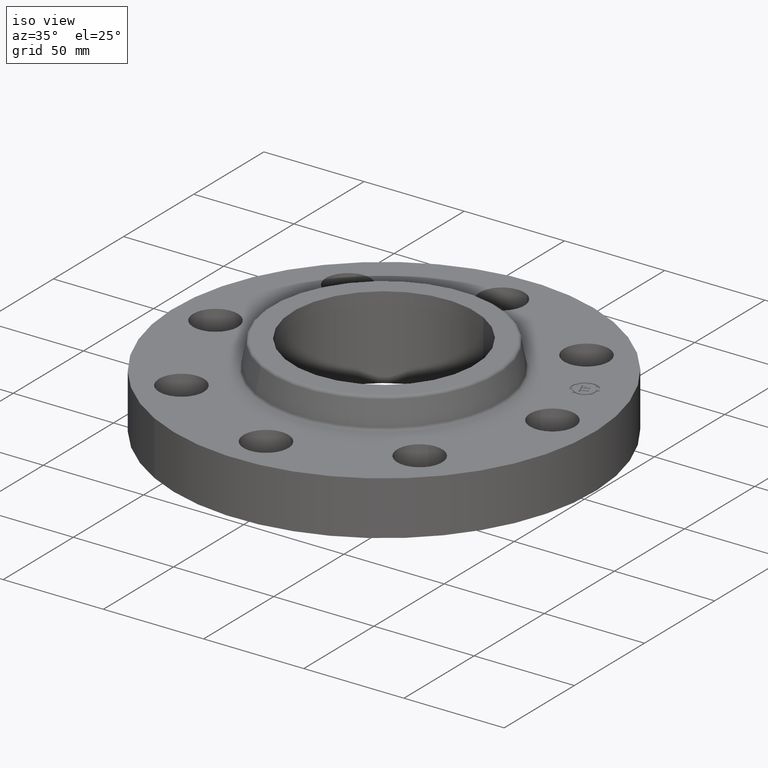
[diagram: clean part render]
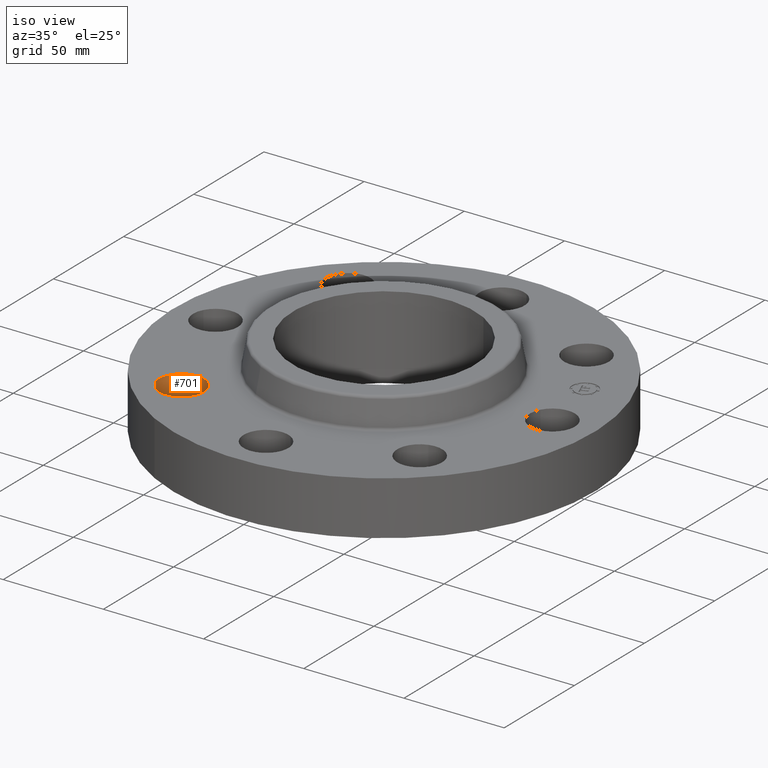
[diagram: same view with one face highlighted and labeled with its STEP entity id]
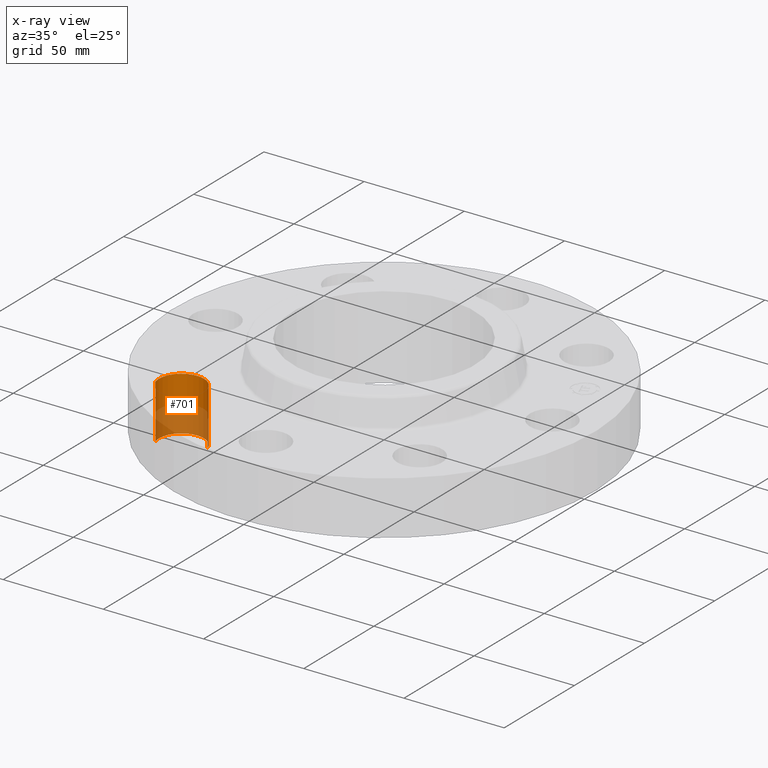
[diagram: x-ray of the same camera — body ghosted, the highlighted face saturated]
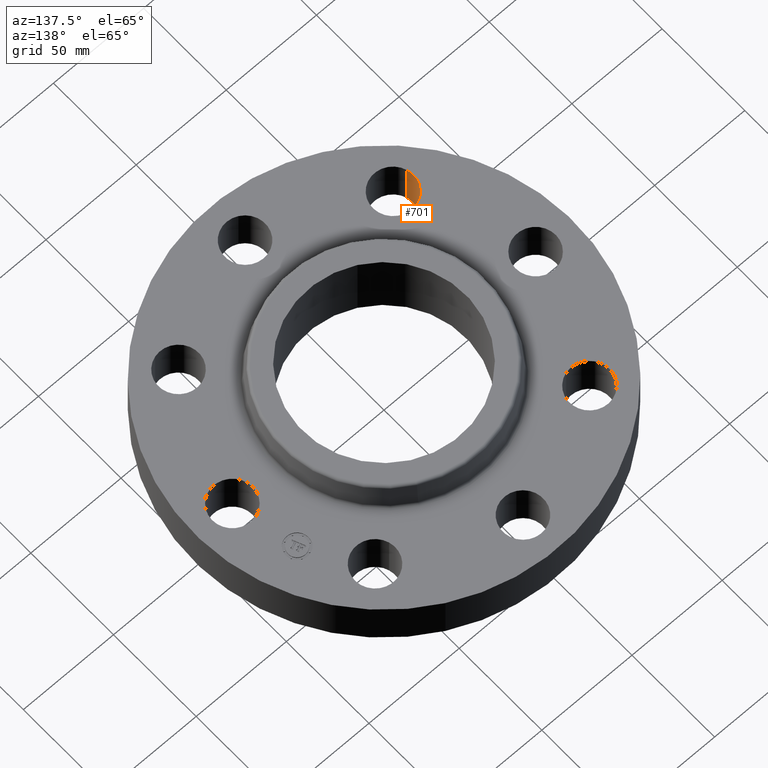
[diagram: same view with one face highlighted and labeled with its STEP entity id]
A machine part, iso view. The second image highlights one B-rep face of the part: STEP entity #701.
The next image is the same camera in x-ray: the body ghosted, the highlighted face saturated — about 49% of this face is hidden behind the body in this view.
A second angle (auxiliary view) of the same face is appended — the face is thin or edge-on in the first view.
In plain terms, the highlighted cylindrical surface (edge-blend (fillet) strip) has radius 11.176 mm, axis along (-0, 0, -1).
Its self-contained STEP definition (entity closure, byte-faithful):
#450=AXIS2_PLACEMENT_3D('Circle Axis2P3D',#448,#449,$) ;
#662=AXIS2_PLACEMENT_3D('Cylinder Axis2P3D',#659,#660,#661) ;
#692=AXIS2_PLACEMENT_3D('Circle Axis2P3D',#690,#691,$) ;
#443=CARTESIAN_POINT('Vertex',(-1.91832160854,-2.21664605203,0.)) ;
#445=CARTESIAN_POINT('Vertex',(-2.76272528293,-2.46440083944,0.)) ;
#448=CARTESIAN_POINT('Axis2P3D Location',(-2.34052344574,-2.34052344574,0.)) ;
#659=CARTESIAN_POINT('Axis2P3D Location',(-2.34052344574,-2.34052344574,1.05606299213)) ;
#664=CARTESIAN_POINT('Line Origine',(-1.91832160854,-2.21664605203,0.530000000002)) ;
#668=CARTESIAN_POINT('Vertex',(-1.91832160854,-2.21664605203,1.06)) ;
#671=CARTESIAN_POINT('Line Origine',(-2.76272528293,-2.46440083944,0.530000000002)) ;
#675=CARTESIAN_POINT('Vertex',(-2.76272528293,-2.46440083944,1.06)) ;
#690=CARTESIAN_POINT('Axis2P3D Location',(-2.34052344574,-2.34052344574,1.06)) ;
#449=DIRECTION('Axis2P3D Direction',(0.,0.,-0.0393700787402)) ;
#660=DIRECTION('Axis2P3D Direction',(-0.,0.,-0.0393700787402)) ;
#661=DIRECTION('Axis2P3D XDirection',(-0.0377775444876,-0.0110842335096,0.)) ;
#665=DIRECTION('Vector Direction',(0.,0.,-0.0393700787402)) ;
#672=DIRECTION('Vector Direction',(0.,0.,-0.0393700787402)) ;
#691=DIRECTION('Axis2P3D Direction',(-0.,0.,-0.0393700787402)) ;
#666=VECTOR('Line Direction',#665,0.0393700787402) ;
#673=VECTOR('Line Direction',#672,0.0393700787402) ;
#696=ORIENTED_EDGE('',*,*,#677,.F.) ;
#697=ORIENTED_EDGE('',*,*,#452,.T.) ;
#698=ORIENTED_EDGE('',*,*,#670,.T.) ;
#699=ORIENTED_EDGE('',*,*,#694,.F.) ;
#701=ADVANCED_FACE('PartBody',(#700),#663,.F.) ;
#451=CIRCLE('generated circle',#450,0.440000000002) ;
#693=CIRCLE('generated circle',#692,0.440000000002) ;
#663=CYLINDRICAL_SURFACE('generated cylinder',#662,0.440000000002) ;
#452=EDGE_CURVE('',#446,#444,#451,.T.) ;
#670=EDGE_CURVE('',#444,#669,#667,.F.) ;
#677=EDGE_CURVE('',#446,#676,#674,.F.) ;
#694=EDGE_CURVE('',#676,#669,#693,.T.) ;
#695=EDGE_LOOP('',(#696,#697,#698,#699)) ;
#700=FACE_OUTER_BOUND('',#695,.T.) ;
#667=LINE('Line',#664,#666) ;
#674=LINE('Line',#671,#673) ;
#444=VERTEX_POINT('',#443) ;
#446=VERTEX_POINT('',#445) ;
#669=VERTEX_POINT('',#668) ;
#676=VERTEX_POINT('',#675) ;